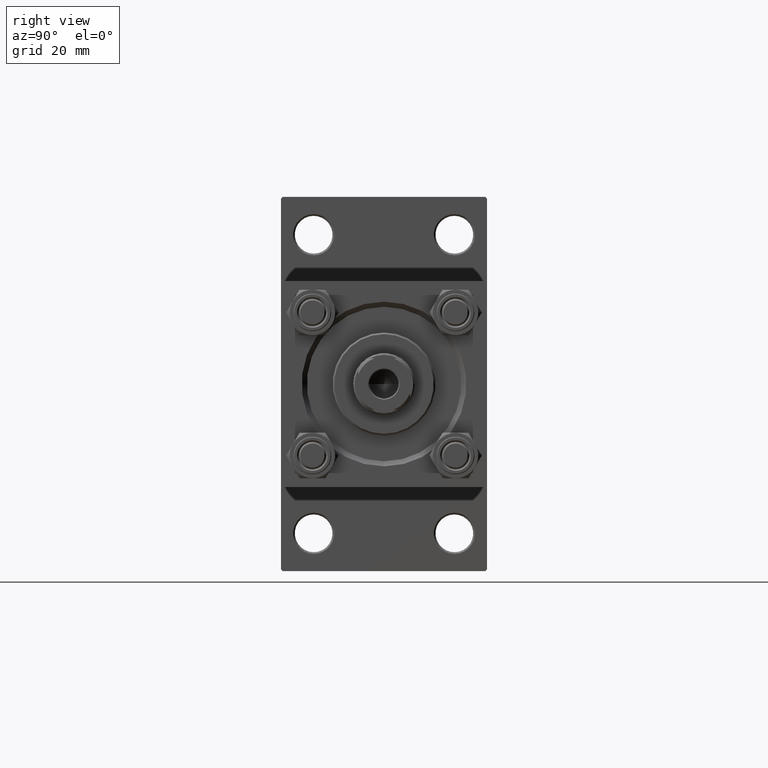
[diagram: clean part render]
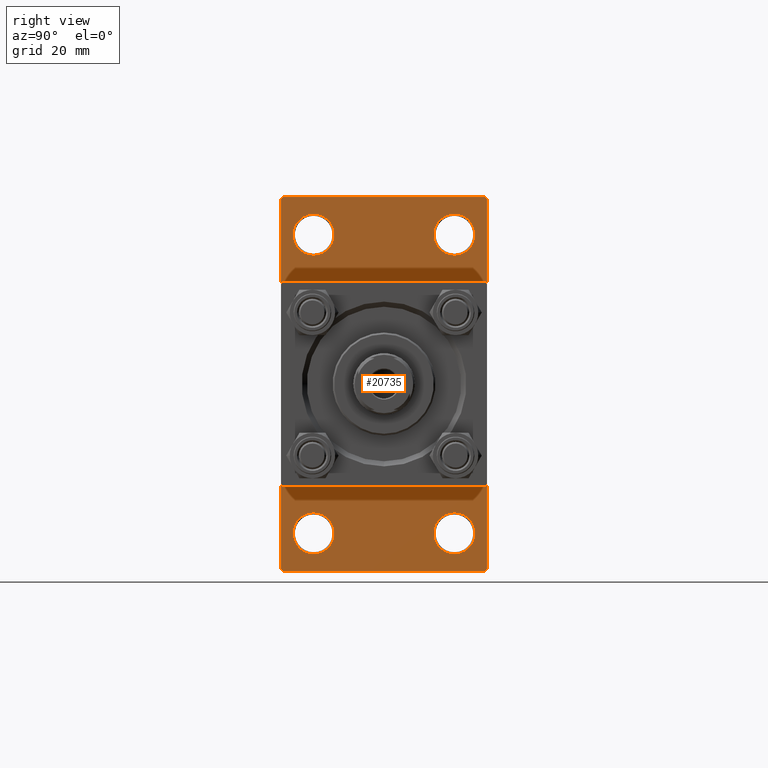
[diagram: same view with one face highlighted and labeled with its STEP entity id]
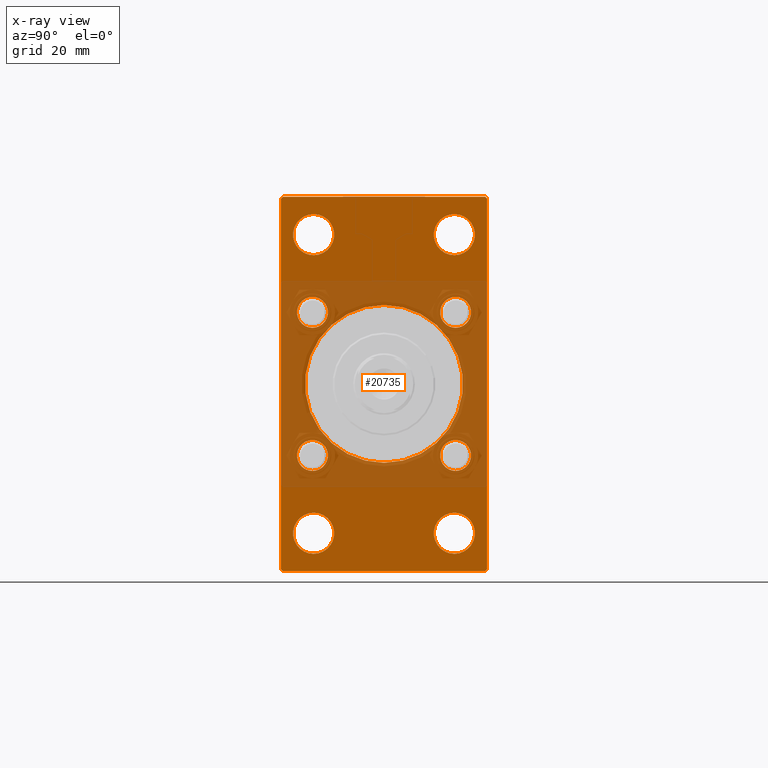
[diagram: x-ray of the same camera — body ghosted, the highlighted face saturated]
A machine part, right view. The second image highlights one B-rep face of the part: STEP entity #20735.
The next image is the same camera in x-ray: the body ghosted, the highlighted face saturated — about 41% of this face is hidden behind the body in this view.
In plain terms, the highlighted planar face has unit normal (-1, 0, 0).
Its self-contained STEP definition (entity closure, byte-faithful):
#149 = FACE_BOUND ( 'NONE', #22575, .T. ) ;
#677 = VERTEX_POINT ( 'NONE', #37336 ) ;
#787 = DIRECTION ( 'NONE',  ( 0.000000000000000000, 0.000000000000000000, 1.000000000000000000 ) ) ;
#1030 = CARTESIAN_POINT ( 'NONE',  ( 37.00000000000000000, 20.50000000000000355, 43.50000000000000000 ) ) ;
#1173 = CARTESIAN_POINT ( 'NONE',  ( 37.00000000000000000, -29.99999999999999645, -53.99999999999996447 ) ) ;
#1463 = CARTESIAN_POINT ( 'NONE',  ( 37.00000000000000000, 30.00000000000000355, -53.99999999999995737 ) ) ;
#1608 = CARTESIAN_POINT ( 'NONE',  ( 37.00000000000000000, 2.146024240737012665E-16, -23.00000000000000000 ) ) ;
#1641 = ORIENTED_EDGE ( 'NONE', *, *, #7522, .T. ) ;
#2166 = VERTEX_POINT ( 'NONE', #15959 ) ;
#2487 = VERTEX_POINT ( 'NONE', #1173 ) ;
#2676 = VECTOR ( 'NONE', #12789, 1000.000000000000000 ) ;
#2962 = VERTEX_POINT ( 'NONE', #25277 ) ;
#3104 = AXIS2_PLACEMENT_3D ( 'NONE', #14705, #13968, #33927 ) ;
#3290 = EDGE_LOOP ( 'NONE', ( #49976, #42739 ) ) ;
#3696 = FACE_BOUND ( 'NONE', #12728, .T. ) ;
#3875 = EDGE_CURVE ( 'NONE', #2487, #20582, #20614, .T. ) ;
#3934 = DIRECTION ( 'NONE',  ( 0.000000000000000000, 0.000000000000000000, 1.000000000000000000 ) ) ;
#3940 = VERTEX_POINT ( 'NONE', #46812 ) ;
#4081 = CARTESIAN_POINT ( 'NONE',  ( 37.00000000000000000, -29.99999999999999645, 54.00000000000002132 ) ) ;
#4571 = CARTESIAN_POINT ( 'NONE',  ( 37.00000000000000000, -20.84999999999999076, -20.85000000000000497 ) ) ;
#4689 = VERTEX_POINT ( 'NONE', #37785 ) ;
#5408 = CARTESIAN_POINT ( 'NONE',  ( 37.00000000000000000, 29.50000000000000355, 54.50000000000001421 ) ) ;
#5444 = CARTESIAN_POINT ( 'NONE',  ( 37.00000000000000000, -20.49999999999999645, 43.50000000000000000 ) ) ;
#5606 = EDGE_CURVE ( 'NONE', #677, #31690, #17945, .T. ) ;
#5818 = VECTOR ( 'NONE', #10006, 1000.000000000000000 ) ;
#6112 = ORIENTED_EDGE ( 'NONE', *, *, #15260, .T. ) ;
#6172 = EDGE_LOOP ( 'NONE', ( #49242, #28227 ) ) ;
#6215 = EDGE_CURVE ( 'NONE', #11598, #2487, #24916, .T. ) ;
#6255 = CARTESIAN_POINT ( 'NONE',  ( 37.00000000000000000, 20.50000000000000355, -49.50000000000000000 ) ) ;
#6785 = VECTOR ( 'NONE', #13745, 1000.000000000000114 ) ;
#6812 = VERTEX_POINT ( 'NONE', #14104 ) ;
#7095 = CARTESIAN_POINT ( 'NONE',  ( 37.00000000000000000, 20.84999999999999787, -20.85000000000000142 ) ) ;
#7522 = EDGE_CURVE ( 'NONE', #49752, #22774, #41035, .T. ) ;
#7547 = DIRECTION ( 'NONE',  ( -1.000000000000000000, 0.000000000000000000, -0.000000000000000000 ) ) ;
#7730 = LINE ( 'NONE', #34767, #48253 ) ;
#8330 = EDGE_CURVE ( 'NONE', #22774, #11598, #47627, .T. ) ;
#8502 = CARTESIAN_POINT ( 'NONE',  ( 37.00000000000000000, 20.84999999999999787, 20.85000000000000142 ) ) ;
#8533 = AXIS2_PLACEMENT_3D ( 'NONE', #37170, #41715, #38159 ) ;
#8682 = DIRECTION ( 'NONE',  ( -1.000000000000000000, 0.000000000000000000, -0.000000000000000000 ) ) ;
#8749 = CIRCLE ( 'NONE', #3104, 4.499999999999976019 ) ;
#8778 = ORIENTED_EDGE ( 'NONE', *, *, #6215, .T. ) ;
#9230 = ORIENTED_EDGE ( 'NONE', *, *, #3875, .T. ) ;
#9283 = CARTESIAN_POINT ( 'NONE',  ( 37.00000000000000000, -29.49999999999998224, -54.50000000000000000 ) ) ;
#9508 = AXIS2_PLACEMENT_3D ( 'NONE', #49847, #41759, #23287 ) ;
#9893 = AXIS2_PLACEMENT_3D ( 'NONE', #14368, #49253, #29792 ) ;
#10006 = DIRECTION ( 'NONE',  ( 0.000000000000000000, 0.7071067811865524577, -0.7071067811865426878 ) ) ;
#10093 = AXIS2_PLACEMENT_3D ( 'NONE', #43662, #39856, #27997 ) ;
#10195 = CIRCLE ( 'NONE', #35232, 6.000000000000005329 ) ;
#10381 = CIRCLE ( 'NONE', #46709, 6.000000000000005329 ) ;
#10458 = CARTESIAN_POINT ( 'NONE',  ( 37.00000000000000000, 30.00000000000000355, 54.50000000000001421 ) ) ;
#10786 = FACE_BOUND ( 'NONE', #43188, .T. ) ;
#11048 = ORIENTED_EDGE ( 'NONE', *, *, #24599, .F. ) ;
#11172 = EDGE_LOOP ( 'NONE', ( #11048, #29531 ) ) ;
#11346 = CIRCLE ( 'NONE', #12911, 23.00000000000000000 ) ;
#11528 = FACE_BOUND ( 'NONE', #6172, .T. ) ;
#11598 = VERTEX_POINT ( 'NONE', #4081 ) ;
#12288 = DIRECTION ( 'NONE',  ( 0.000000000000000000, 0.000000000000000000, 1.000000000000000000 ) ) ;
#12466 = CARTESIAN_POINT ( 'NONE',  ( 37.00000000000000000, 20.84999999999999787, -20.85000000000000142 ) ) ;
#12542 = CARTESIAN_POINT ( 'NONE',  ( 37.00000000000000000, -2.602085213965210642E-15, 0.000000000000000000 ) ) ;
#12703 = CIRCLE ( 'NONE', #22418, 23.00000000000000000 ) ;
#12728 = EDGE_LOOP ( 'NONE', ( #6112, #23270 ) ) ;
#12789 = DIRECTION ( 'NONE',  ( 0.000000000000000000, 0.000000000000000000, -1.000000000000000000 ) ) ;
#12794 = DIRECTION ( 'NONE',  ( 1.000000000000000000, -0.000000000000000000, 0.000000000000000000 ) ) ;
#12911 = AXIS2_PLACEMENT_3D ( 'NONE', #20873, #12794, #43638 ) ;
#13083 = VERTEX_POINT ( 'NONE', #19359 ) ;
#13745 = DIRECTION ( 'NONE',  ( -0.000000000000000000, -0.7071067811865474617, -0.7071067811865474617 ) ) ;
#13968 = DIRECTION ( 'NONE',  ( -1.000000000000000000, 0.000000000000000000, -0.000000000000000000 ) ) ;
#14069 = CARTESIAN_POINT ( 'NONE',  ( 37.00000000000000000, 30.00000000000000355, -53.99999999999995737 ) ) ;
#14104 = CARTESIAN_POINT ( 'NONE',  ( 37.00000000000000000, -20.84999999999999076, -25.34999999999998010 ) ) ;
#14116 = VERTEX_POINT ( 'NONE', #26434 ) ;
#14120 = AXIS2_PLACEMENT_3D ( 'NONE', #30393, #37726, #49616 ) ;
#14156 = DIRECTION ( 'NONE',  ( 0.000000000000000000, 0.000000000000000000, 1.000000000000000000 ) ) ;
#14368 = CARTESIAN_POINT ( 'NONE',  ( 37.00000000000000000, -20.49999999999999645, 43.50000000000000000 ) ) ;
#14705 = CARTESIAN_POINT ( 'NONE',  ( 37.00000000000000000, -20.84999999999999076, -20.85000000000000497 ) ) ;
#15030 = EDGE_CURVE ( 'NONE', #48257, #39074, #45620, .T. ) ;
#15050 = DIRECTION ( 'NONE',  ( -0.000000000000000000, 0.000000000000000000, 1.000000000000000000 ) ) ;
#15166 = CARTESIAN_POINT ( 'NONE',  ( 37.00000000000000000, 29.50000000000000355, 54.50000000000001421 ) ) ;
#15260 = EDGE_CURVE ( 'NONE', #41566, #4689, #21365, .T. ) ;
#15311 = CIRCLE ( 'NONE', #15531, 4.499999999999976019 ) ;
#15340 = ORIENTED_EDGE ( 'NONE', *, *, #8330, .T. ) ;
#15531 = AXIS2_PLACEMENT_3D ( 'NONE', #4571, #16159, #35387 ) ;
#15959 = CARTESIAN_POINT ( 'NONE',  ( 37.00000000000000000, -20.49999999999999645, 37.49999999999999289 ) ) ;
#15989 = EDGE_CURVE ( 'NONE', #39928, #41957, #35906, .T. ) ;
#16159 = DIRECTION ( 'NONE',  ( -1.000000000000000000, 0.000000000000000000, -0.000000000000000000 ) ) ;
#16387 = VECTOR ( 'NONE', #37480, 1000.000000000000000 ) ;
#16536 = CARTESIAN_POINT ( 'NONE',  ( 37.00000000000000000, -20.84999999999999076, -16.35000000000002629 ) ) ;
#16772 = CIRCLE ( 'NONE', #40893, 6.000000000000005329 ) ;
#17365 = AXIS2_PLACEMENT_3D ( 'NONE', #17728, #25578, #48332 ) ;
#17397 = VERTEX_POINT ( 'NONE', #16536 ) ;
#17728 = CARTESIAN_POINT ( 'NONE',  ( 37.00000000000000000, -20.84999999999999076, 20.85000000000000497 ) ) ;
#17945 = CIRCLE ( 'NONE', #24406, 4.499999999999976019 ) ;
#18019 = EDGE_LOOP ( 'NONE', ( #31061, #45186, #30731, #43705, #1641, #15340, #8778, #9230 ) ) ;
#18124 = EDGE_CURVE ( 'NONE', #3940, #40813, #36075, .T. ) ;
#18502 = EDGE_CURVE ( 'NONE', #2166, #13083, #10195, .T. ) ;
#19094 = FACE_BOUND ( 'NONE', #11172, .T. ) ;
#19192 = DIRECTION ( 'NONE',  ( -1.000000000000000000, 0.000000000000000000, -0.000000000000000000 ) ) ;
#19254 = EDGE_CURVE ( 'NONE', #20025, #49752, #49815, .T. ) ;
#19359 = CARTESIAN_POINT ( 'NONE',  ( 37.00000000000000000, -20.49999999999999645, 49.50000000000000000 ) ) ;
#19411 = LINE ( 'NONE', #23212, #21613 ) ;
#19582 = CARTESIAN_POINT ( 'NONE',  ( 37.00000000000000000, 30.00000000000000355, 54.00000000000001421 ) ) ;
#19720 = VERTEX_POINT ( 'NONE', #35810 ) ;
#19929 = VECTOR ( 'NONE', #46017, 1000.000000000000114 ) ;
#20025 = VERTEX_POINT ( 'NONE', #19582 ) ;
#20582 = VERTEX_POINT ( 'NONE', #9283 ) ;
#20614 = LINE ( 'NONE', #36033, #5818 ) ;
#20735 = ADVANCED_FACE ( 'NONE', ( #22398, #34269, #10786, #38304, #11528, #149, #3696, #49949, #19094, #41611 ), #49697, .F. ) ;
#20873 = CARTESIAN_POINT ( 'NONE',  ( 37.00000000000000000, -2.602085213965210642E-15, 0.000000000000000000 ) ) ;
#21365 = CIRCLE ( 'NONE', #17365, 4.499999999999976019 ) ;
#21436 = CIRCLE ( 'NONE', #8533, 4.499999999999976019 ) ;
#21547 = AXIS2_PLACEMENT_3D ( 'NONE', #8502, #42885, #12288 ) ;
#21578 = AXIS2_PLACEMENT_3D ( 'NONE', #45904, #37811, #15050 ) ;
#21613 = VECTOR ( 'NONE', #31789, 1000.000000000000000 ) ;
#22398 = FACE_BOUND ( 'NONE', #25068, .T. ) ;
#22418 = AXIS2_PLACEMENT_3D ( 'NONE', #12542, #27960, #35054 ) ;
#22575 = EDGE_LOOP ( 'NONE', ( #35516, #41058 ) ) ;
#22774 = VERTEX_POINT ( 'NONE', #32159 ) ;
#22885 = DIRECTION ( 'NONE',  ( 0.000000000000000000, -1.000000000000000000, -2.312964634635742957E-16 ) ) ;
#23069 = EDGE_CURVE ( 'NONE', #2962, #36348, #16772, .T. ) ;
#23119 = CARTESIAN_POINT ( 'NONE',  ( 37.00000000000000000, -20.84999999999999076, 20.85000000000000497 ) ) ;
#23212 = CARTESIAN_POINT ( 'NONE',  ( 37.00000000000000000, 30.00000000000000355, 54.50000000000001421 ) ) ;
#23270 = ORIENTED_EDGE ( 'NONE', *, *, #31898, .T. ) ;
#23287 = DIRECTION ( 'NONE',  ( 0.000000000000000000, 0.000000000000000000, 1.000000000000000000 ) ) ;
#23822 = EDGE_CURVE ( 'NONE', #19720, #14116, #36889, .T. ) ;
#23932 = ORIENTED_EDGE ( 'NONE', *, *, #23822, .T. ) ;
#24406 = AXIS2_PLACEMENT_3D ( 'NONE', #7095, #19192, #14156 ) ;
#24599 = EDGE_CURVE ( 'NONE', #30515, #49774, #12703, .T. ) ;
#24646 = AXIS2_PLACEMENT_3D ( 'NONE', #23119, #49431, #3934 ) ;
#24916 = LINE ( 'NONE', #48170, #2676 ) ;
#25068 = EDGE_LOOP ( 'NONE', ( #38752, #35361 ) ) ;
#25218 = EDGE_CURVE ( 'NONE', #3940, #20582, #7730, .T. ) ;
#25277 = CARTESIAN_POINT ( 'NONE',  ( 37.00000000000000000, 20.50000000000000355, 37.49999999999999289 ) ) ;
#25578 = DIRECTION ( 'NONE',  ( -1.000000000000000000, 0.000000000000000000, -0.000000000000000000 ) ) ;
#25810 = EDGE_CURVE ( 'NONE', #20025, #40813, #19411, .T. ) ;
#26434 = CARTESIAN_POINT ( 'NONE',  ( 37.00000000000000000, 20.84999999999999787, 25.34999999999997655 ) ) ;
#27790 = EDGE_CURVE ( 'NONE', #17397, #6812, #15311, .T. ) ;
#27871 = EDGE_CURVE ( 'NONE', #13083, #2166, #38934, .T. ) ;
#27886 = DIRECTION ( 'NONE',  ( 0.000000000000000000, 0.000000000000000000, 1.000000000000000000 ) ) ;
#27960 = DIRECTION ( 'NONE',  ( 1.000000000000000000, -0.000000000000000000, 0.000000000000000000 ) ) ;
#27997 = DIRECTION ( 'NONE',  ( 0.000000000000000000, 0.000000000000000000, 1.000000000000000000 ) ) ;
#28227 = ORIENTED_EDGE ( 'NONE', *, *, #27790, .T. ) ;
#29261 = ORIENTED_EDGE ( 'NONE', *, *, #15989, .T. ) ;
#29531 = ORIENTED_EDGE ( 'NONE', *, *, #47371, .F. ) ;
#29792 = DIRECTION ( 'NONE',  ( 0.000000000000000000, 0.000000000000000000, 1.000000000000000000 ) ) ;
#29903 = DIRECTION ( 'NONE',  ( 0.000000000000000000, 0.000000000000000000, 1.000000000000000000 ) ) ;
#30280 = DIRECTION ( 'NONE',  ( 0.000000000000000000, 0.000000000000000000, 1.000000000000000000 ) ) ;
#30393 = CARTESIAN_POINT ( 'NONE',  ( 37.00000000000000000, 20.50000000000000355, -43.50000000000000000 ) ) ;
#30515 = VERTEX_POINT ( 'NONE', #48489 ) ;
#30731 = ORIENTED_EDGE ( 'NONE', *, *, #25810, .F. ) ;
#31061 = ORIENTED_EDGE ( 'NONE', *, *, #25218, .F. ) ;
#31367 = DIRECTION ( 'NONE',  ( -1.000000000000000000, 0.000000000000000000, -0.000000000000000000 ) ) ;
#31690 = VERTEX_POINT ( 'NONE', #39835 ) ;
#31735 = ORIENTED_EDGE ( 'NONE', *, *, #15030, .T. ) ;
#31789 = DIRECTION ( 'NONE',  ( 0.000000000000000000, 0.000000000000000000, -1.000000000000000000 ) ) ;
#31898 = EDGE_CURVE ( 'NONE', #4689, #41566, #41733, .T. ) ;
#32159 = CARTESIAN_POINT ( 'NONE',  ( 37.00000000000000000, -29.50000000000000711, 54.50000000000000711 ) ) ;
#32294 = ORIENTED_EDGE ( 'NONE', *, *, #33325, .T. ) ;
#33325 = EDGE_CURVE ( 'NONE', #14116, #19720, #21436, .T. ) ;
#33600 = CARTESIAN_POINT ( 'NONE',  ( 37.00000000000000000, 20.50000000000000355, -37.49999999999999289 ) ) ;
#33927 = DIRECTION ( 'NONE',  ( 0.000000000000000000, 0.000000000000000000, 1.000000000000000000 ) ) ;
#34269 = FACE_BOUND ( 'NONE', #3290, .T. ) ;
#34647 = EDGE_CURVE ( 'NONE', #41957, #39928, #48943, .T. ) ;
#34655 = CARTESIAN_POINT ( 'NONE',  ( 37.00000000000000000, -20.84999999999999076, 16.35000000000002629 ) ) ;
#34767 = CARTESIAN_POINT ( 'NONE',  ( 37.00000000000000000, 30.00000000000000355, -54.49999999999998579 ) ) ;
#34902 = ORIENTED_EDGE ( 'NONE', *, *, #34647, .T. ) ;
#34978 = ORIENTED_EDGE ( 'NONE', *, *, #39715, .T. ) ;
#35054 = DIRECTION ( 'NONE',  ( 0.000000000000000000, 0.000000000000000000, 1.000000000000000000 ) ) ;
#35232 = AXIS2_PLACEMENT_3D ( 'NONE', #5444, #39798, #40306 ) ;
#35361 = ORIENTED_EDGE ( 'NONE', *, *, #37777, .T. ) ;
#35387 = DIRECTION ( 'NONE',  ( 0.000000000000000000, 0.000000000000000000, 1.000000000000000000 ) ) ;
#35516 = ORIENTED_EDGE ( 'NONE', *, *, #42710, .T. ) ;
#35810 = CARTESIAN_POINT ( 'NONE',  ( 37.00000000000000000, 20.84999999999999787, 16.35000000000002274 ) ) ;
#35906 = CIRCLE ( 'NONE', #14120, 6.000000000000005329 ) ;
#35983 = EDGE_LOOP ( 'NONE', ( #29261, #34902 ) ) ;
#36033 = CARTESIAN_POINT ( 'NONE',  ( 37.00000000000000000, -29.49999999999998224, -54.50000000000000000 ) ) ;
#36075 = LINE ( 'NONE', #1463, #48109 ) ;
#36348 = VERTEX_POINT ( 'NONE', #40042 ) ;
#36481 = EDGE_LOOP ( 'NONE', ( #23932, #32294 ) ) ;
#36889 = CIRCLE ( 'NONE', #21547, 4.499999999999976019 ) ;
#37170 = CARTESIAN_POINT ( 'NONE',  ( 37.00000000000000000, 20.84999999999999787, 20.85000000000000142 ) ) ;
#37336 = CARTESIAN_POINT ( 'NONE',  ( 37.00000000000000000, 20.84999999999999787, -16.35000000000002274 ) ) ;
#37480 = DIRECTION ( 'NONE',  ( 0.000000000000000000, -1.000000000000000000, -1.156482317317871478E-16 ) ) ;
#37664 = CARTESIAN_POINT ( 'NONE',  ( 37.00000000000000000, -20.49999999999999645, -49.50000000000000000 ) ) ;
#37726 = DIRECTION ( 'NONE',  ( -1.000000000000000000, 0.000000000000000000, -0.000000000000000000 ) ) ;
#37777 = EDGE_CURVE ( 'NONE', #36348, #2962, #45838, .T. ) ;
#37785 = CARTESIAN_POINT ( 'NONE',  ( 37.00000000000000000, -20.84999999999999076, 25.34999999999998010 ) ) ;
#37811 = DIRECTION ( 'NONE',  ( -1.000000000000000000, 0.000000000000000000, -0.000000000000000000 ) ) ;
#38112 = CARTESIAN_POINT ( 'NONE',  ( 37.00000000000000000, -20.49999999999999645, -43.50000000000000000 ) ) ;
#38159 = DIRECTION ( 'NONE',  ( 0.000000000000000000, 0.000000000000000000, 1.000000000000000000 ) ) ;
#38304 = FACE_BOUND ( 'NONE', #35983, .T. ) ;
#38382 = EDGE_CURVE ( 'NONE', #6812, #17397, #8749, .T. ) ;
#38752 = ORIENTED_EDGE ( 'NONE', *, *, #23069, .T. ) ;
#38934 = CIRCLE ( 'NONE', #9893, 6.000000000000005329 ) ;
#39074 = VERTEX_POINT ( 'NONE', #47447 ) ;
#39225 = AXIS2_PLACEMENT_3D ( 'NONE', #49619, #45827, #29903 ) ;
#39715 = EDGE_CURVE ( 'NONE', #39074, #48257, #10381, .T. ) ;
#39798 = DIRECTION ( 'NONE',  ( -1.000000000000000000, 0.000000000000000000, -0.000000000000000000 ) ) ;
#39835 = CARTESIAN_POINT ( 'NONE',  ( 37.00000000000000000, 20.84999999999999787, -25.34999999999997655 ) ) ;
#39856 = DIRECTION ( 'NONE',  ( -1.000000000000000000, 0.000000000000000000, -0.000000000000000000 ) ) ;
#39928 = VERTEX_POINT ( 'NONE', #6255 ) ;
#40042 = CARTESIAN_POINT ( 'NONE',  ( 37.00000000000000000, 20.50000000000000355, 49.50000000000000000 ) ) ;
#40306 = DIRECTION ( 'NONE',  ( 0.000000000000000000, 0.000000000000000000, 1.000000000000000000 ) ) ;
#40375 = DIRECTION ( 'NONE',  ( -0.000000000000000000, 0.7071067811865474617, 0.7071067811865474617 ) ) ;
#40813 = VERTEX_POINT ( 'NONE', #14069 ) ;
#40893 = AXIS2_PLACEMENT_3D ( 'NONE', #1030, #31367, #787 ) ;
#41035 = LINE ( 'NONE', #10458, #16387 ) ;
#41058 = ORIENTED_EDGE ( 'NONE', *, *, #5606, .T. ) ;
#41566 = VERTEX_POINT ( 'NONE', #34655 ) ;
#41611 = FACE_OUTER_BOUND ( 'NONE', #18019, .T. ) ;
#41715 = DIRECTION ( 'NONE',  ( -1.000000000000000000, 0.000000000000000000, -0.000000000000000000 ) ) ;
#41733 = CIRCLE ( 'NONE', #24646, 4.499999999999976019 ) ;
#41759 = DIRECTION ( 'NONE',  ( -1.000000000000000000, 0.000000000000000000, -0.000000000000000000 ) ) ;
#41957 = VERTEX_POINT ( 'NONE', #33600 ) ;
#42710 = EDGE_CURVE ( 'NONE', #31690, #677, #46815, .T. ) ;
#42739 = ORIENTED_EDGE ( 'NONE', *, *, #27871, .T. ) ;
#42885 = DIRECTION ( 'NONE',  ( -1.000000000000000000, 0.000000000000000000, -0.000000000000000000 ) ) ;
#43188 = EDGE_LOOP ( 'NONE', ( #31735, #34978 ) ) ;
#43638 = DIRECTION ( 'NONE',  ( 0.000000000000000000, 0.000000000000000000, 1.000000000000000000 ) ) ;
#43662 = CARTESIAN_POINT ( 'NONE',  ( 37.00000000000000000, -20.49999999999999645, -43.50000000000000000 ) ) ;
#43705 = ORIENTED_EDGE ( 'NONE', *, *, #19254, .T. ) ;
#43837 = CARTESIAN_POINT ( 'NONE',  ( 37.00000000000000000, -29.99999999999999645, 54.00000000000002132 ) ) ;
#45186 = ORIENTED_EDGE ( 'NONE', *, *, #18124, .T. ) ;
#45192 = AXIS2_PLACEMENT_3D ( 'NONE', #12466, #8682, #27886 ) ;
#45620 = CIRCLE ( 'NONE', #10093, 6.000000000000005329 ) ;
#45827 = DIRECTION ( 'NONE',  ( -1.000000000000000000, 0.000000000000000000, -0.000000000000000000 ) ) ;
#45838 = CIRCLE ( 'NONE', #9508, 6.000000000000005329 ) ;
#45904 = CARTESIAN_POINT ( 'NONE',  ( 37.00000000000000000, 0.000000000000000000, 0.000000000000000000 ) ) ;
#46017 = DIRECTION ( 'NONE',  ( 0.000000000000000000, -0.7071067811865474617, 0.7071067811865474617 ) ) ;
#46709 = AXIS2_PLACEMENT_3D ( 'NONE', #38112, #7547, #30280 ) ;
#46812 = CARTESIAN_POINT ( 'NONE',  ( 37.00000000000000000, 29.49999999999997513, -54.49999999999998579 ) ) ;
#46815 = CIRCLE ( 'NONE', #45192, 4.499999999999976019 ) ;
#47371 = EDGE_CURVE ( 'NONE', #49774, #30515, #11346, .T. ) ;
#47447 = CARTESIAN_POINT ( 'NONE',  ( 37.00000000000000000, -20.49999999999999645, -37.49999999999999289 ) ) ;
#47627 = LINE ( 'NONE', #43837, #6785 ) ;
#48109 = VECTOR ( 'NONE', #40375, 1000.000000000000114 ) ;
#48170 = CARTESIAN_POINT ( 'NONE',  ( 37.00000000000000000, -29.99999999999999645, 54.50000000000000711 ) ) ;
#48253 = VECTOR ( 'NONE', #22885, 1000.000000000000000 ) ;
#48257 = VERTEX_POINT ( 'NONE', #37664 ) ;
#48332 = DIRECTION ( 'NONE',  ( 0.000000000000000000, 0.000000000000000000, 1.000000000000000000 ) ) ;
#48489 = CARTESIAN_POINT ( 'NONE',  ( 37.00000000000000000, -2.602085213965210642E-15, 23.00000000000000000 ) ) ;
#48943 = CIRCLE ( 'NONE', #39225, 6.000000000000005329 ) ;
#49242 = ORIENTED_EDGE ( 'NONE', *, *, #38382, .T. ) ;
#49253 = DIRECTION ( 'NONE',  ( -1.000000000000000000, 0.000000000000000000, -0.000000000000000000 ) ) ;
#49431 = DIRECTION ( 'NONE',  ( -1.000000000000000000, 0.000000000000000000, -0.000000000000000000 ) ) ;
#49616 = DIRECTION ( 'NONE',  ( 0.000000000000000000, 0.000000000000000000, 1.000000000000000000 ) ) ;
#49619 = CARTESIAN_POINT ( 'NONE',  ( 37.00000000000000000, 20.50000000000000355, -43.50000000000000000 ) ) ;
#49697 = PLANE ( 'NONE',  #21578 ) ;
#49752 = VERTEX_POINT ( 'NONE', #5408 ) ;
#49774 = VERTEX_POINT ( 'NONE', #1608 ) ;
#49815 = LINE ( 'NONE', #15166, #19929 ) ;
#49847 = CARTESIAN_POINT ( 'NONE',  ( 37.00000000000000000, 20.50000000000000355, 43.50000000000000000 ) ) ;
#49949 = FACE_BOUND ( 'NONE', #36481, .T. ) ;
#49976 = ORIENTED_EDGE ( 'NONE', *, *, #18502, .T. ) ;